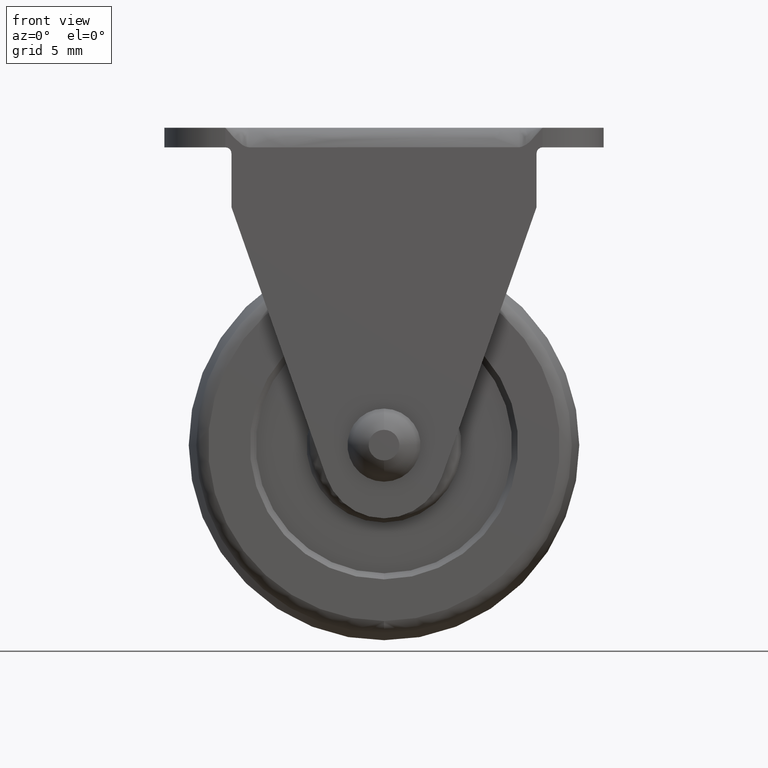
[diagram: clean part render]
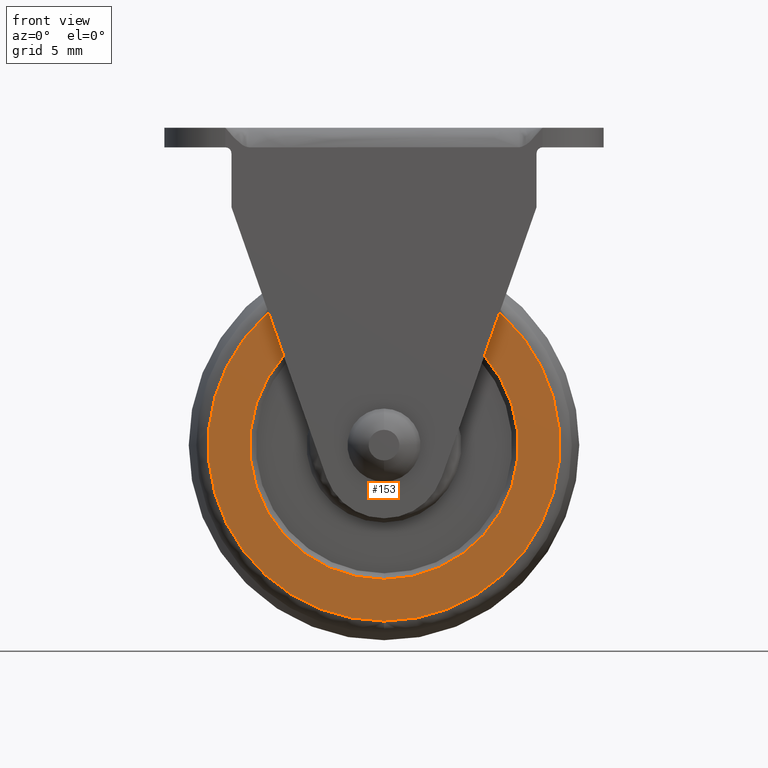
[diagram: same view with one face highlighted and labeled with its STEP entity id]
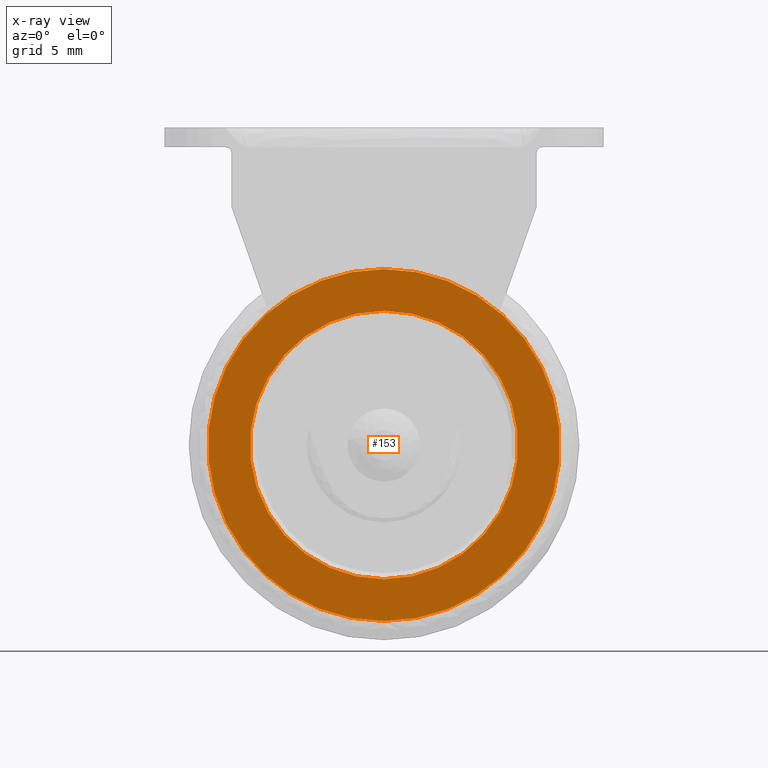
[diagram: x-ray of the same camera — body ghosted, the highlighted face saturated]
A machine part, front view. The second image highlights one B-rep face of the part: STEP entity #153.
The next image is the same camera in x-ray: the body ghosted, the highlighted face saturated — about 0% of this face is hidden behind the body in this view.
In plain terms, the highlighted planar face has unit normal (0, 1, 0).
Its self-contained STEP definition (entity closure, byte-faithful):
#153=ADVANCED_FACE('',(#280,#281),#279,.F.);
#279=PLANE('',#1140);
#280=FACE_OUTER_BOUND('',#1141,.T.);
#281=FACE_BOUND('',#1142,.T.);
#1137=CARTESIAN_POINT('',(-2.99585482842E+01,-7.00000000000E+00,-1.87379572428E+01));
#1138=DIRECTION('',(0.00000000000E+00,1.00000000000E+00,0.00000000000E+00));
#1139=DIRECTION('',(0.00000000000E+00,0.00000000000E+00,1.00000000000E+00));
#1140=AXIS2_PLACEMENT_3D('',#1137,#1138,#1139);
#1141=EDGE_LOOP('',(#1999,#2000));
#1142=EDGE_LOOP('',(#2001,#2002));
#1999=ORIENTED_EDGE('',*,*,#2383,.T.);
#2000=ORIENTED_EDGE('',*,*,#2384,.T.);
#2001=ORIENTED_EDGE('',*,*,#2385,.F.);
#2002=ORIENTED_EDGE('',*,*,#2386,.F.);
#2383=EDGE_CURVE('',#2671,#2672,#2673,.T.);
#2384=EDGE_CURVE('',#2672,#2671,#2679,.T.);
#2385=EDGE_CURVE('',#2685,#2686,#2687,.T.);
#2386=EDGE_CURVE('',#2686,#2685,#2693,.T.);
#2671=VERTEX_POINT('',#3911);
#2672=VERTEX_POINT('',#3912);
#2673=CIRCLE('',#3916,1.44138132637E+01);
#2679=CIRCLE('',#3920,1.44138132637E+01);
#2685=VERTEX_POINT('',#3921);
#2686=VERTEX_POINT('',#3922);
#2687=CIRCLE('',#3926,1.10000000000E+01);
#2693=CIRCLE('',#3930,1.10000000000E+01);
#3911=CARTESIAN_POINT('',(0.00000000000E+00,-7.00000000000E+00,-1.44138132637E+01));
#3912=CARTESIAN_POINT('',(5.92118946467E-16,-7.00000000000E+00,1.44138132637E+01));
#3913=CARTESIAN_POINT('',(0.00000000000E+00,-7.00000000000E+00,8.17347958358E-16));
#3914=DIRECTION('',(0.00000000000E+00,-1.00000000000E+00,-0.00000000000E+00));
#3915=DIRECTION('',(-1.22460635382E-16,0.00000000000E+00,-1.00000000000E+00));
#3916=AXIS2_PLACEMENT_3D('',#3913,#3914,#3915);
#3917=CARTESIAN_POINT('',(0.00000000000E+00,-7.00000000000E+00,8.17347958358E-16));
#3918=DIRECTION('',(0.00000000000E+00,-1.00000000000E+00,-0.00000000000E+00));
#3919=DIRECTION('',(-1.22460635382E-16,0.00000000000E+00,-1.00000000000E+00));
#3920=AXIS2_PLACEMENT_3D('',#3917,#3918,#3919);
#3921=CARTESIAN_POINT('',(5.92118946467E-16,-7.00000000000E+00,1.10000000000E+01));
#3922=CARTESIAN_POINT('',(0.00000000000E+00,-7.00000000000E+00,-1.10000000000E+01));
#3923=CARTESIAN_POINT('',(0.00000000000E+00,-7.00000000000E+00,8.17347958358E-16));
#3924=DIRECTION('',(0.00000000000E+00,-1.00000000000E+00,-0.00000000000E+00));
#3925=DIRECTION('',(-1.22460635382E-16,0.00000000000E+00,-1.00000000000E+00));
#3926=AXIS2_PLACEMENT_3D('',#3923,#3924,#3925);
#3927=CARTESIAN_POINT('',(0.00000000000E+00,-7.00000000000E+00,8.17347958358E-16));
#3928=DIRECTION('',(0.00000000000E+00,-1.00000000000E+00,-0.00000000000E+00));
#3929=DIRECTION('',(-1.22460635382E-16,0.00000000000E+00,-1.00000000000E+00));
#3930=AXIS2_PLACEMENT_3D('',#3927,#3928,#3929);